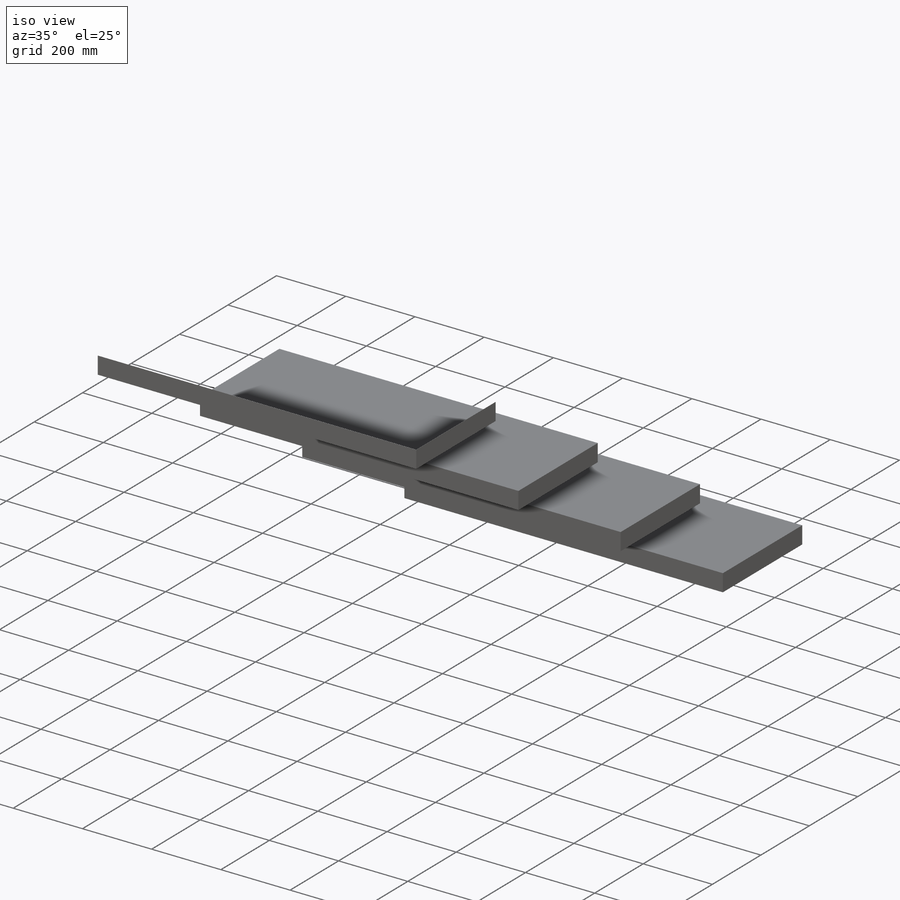
[diagram: iso view]
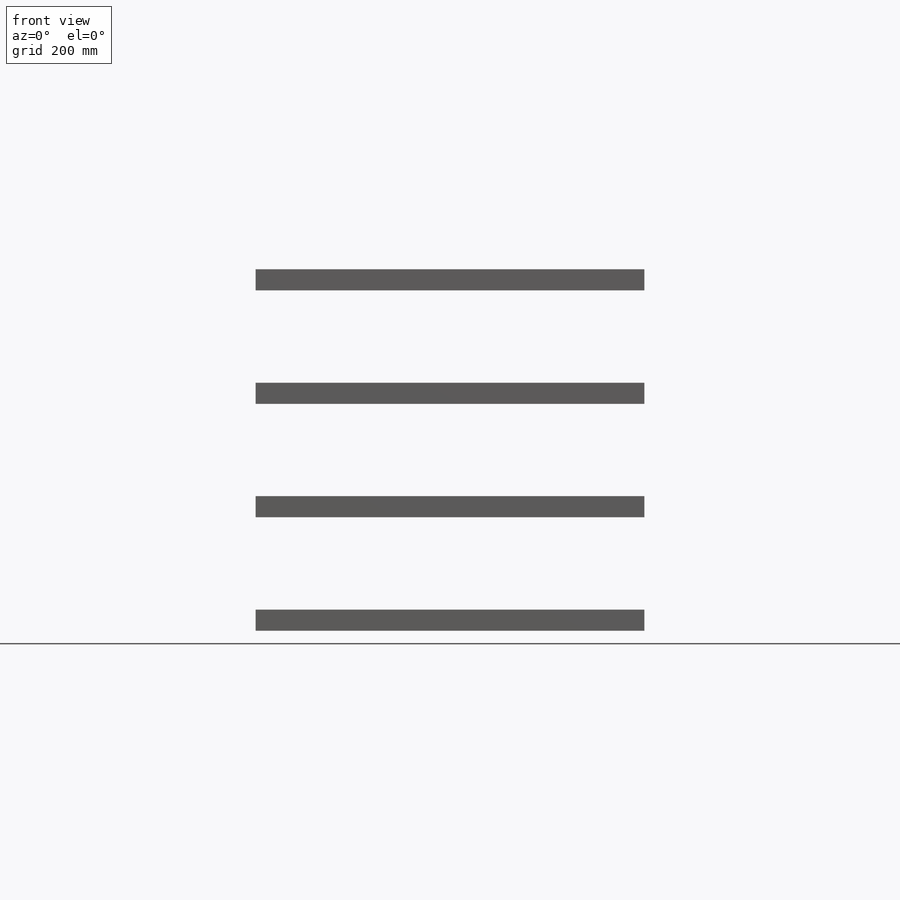
[diagram: front view]
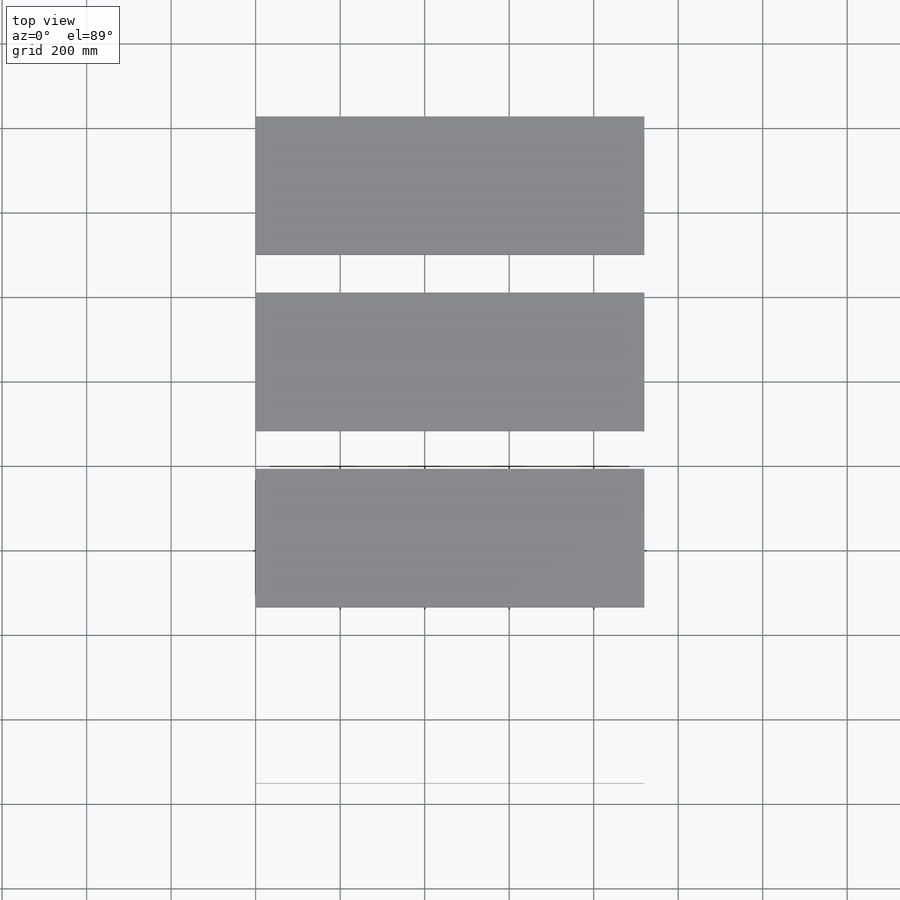
[diagram: top view]
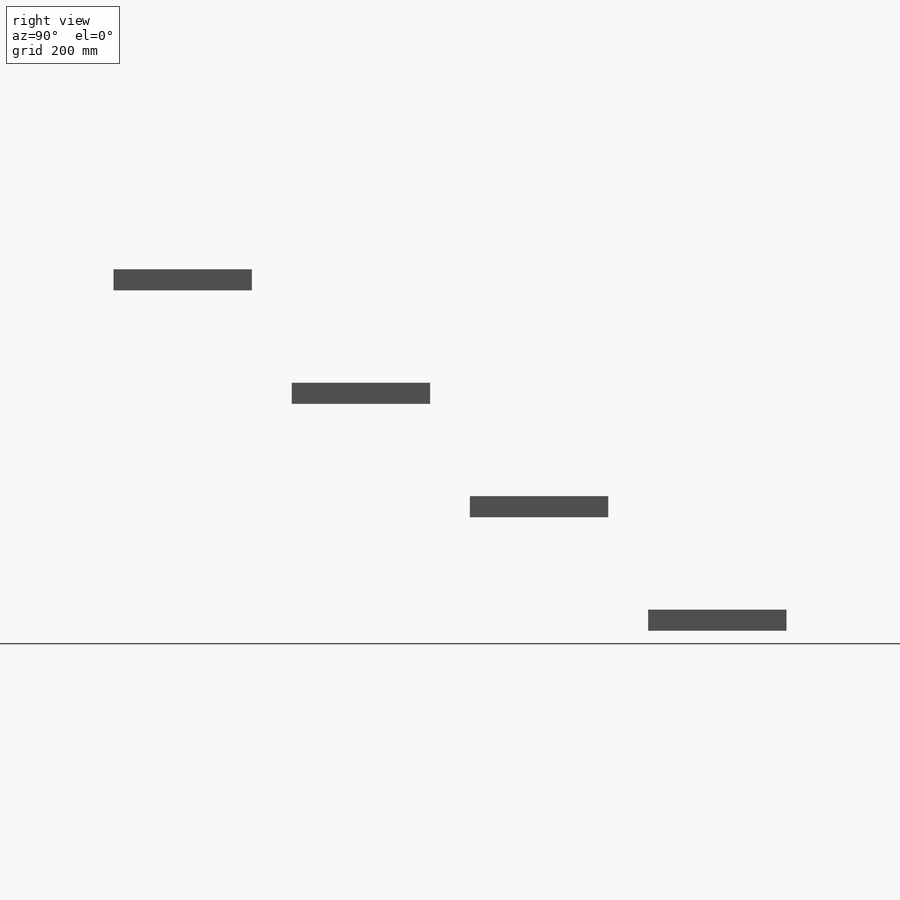
[diagram: right view]
SOLIDWORKS PART (.sldprt)
format: sldprt  version: not decoded by parser v0  size: 592,896 bytes
history: native  units: mm
features: sketch x7, plane x5, material x1, helix x1, surface_op x1, extrude x1 (+12 scaffold rows collapsed)
feature tree (28):
  scaffold x12  (default folders/planes/origin — collapsed)
  material  "7075-T6, Plate (SS)"
  plane  "Ebene vorne"
  plane  "Ebene oben"
  plane  "Ebene rechts"
  plane  "Ebene1"  Offset=3000mm
  sketch  "Skizze5"  dims[D1=900.0mm]
  plane  "Ebene3"
  sketch  "Skizze6"  dims[D1=2500.0mm]
  helix  "Spirale/Helix2"  Pitch=1250mm
  sketch  "3D-Skizze1"  dims[D1=0.0mm]
  sketch  "Skizze1"  dims[c1.D1=2000.0mm c1.D2=~2774.289563mm c2.D2=45.0deg]
  sketch  "Skizze2"  dims[c1.D1=2000.0mm c1.D2=~2774.289563mm c2.D2=45.0deg]
  sketch  "3D-Skizze2"  dims[D1=0.0mm]
  surface_op  "Oberfläche-Linear austragen1"
  sketch  "Skizze7"
  extrude  "Linear austragen1"  Depth=50mm
decode coverage: 8 of 10 modeling features carry decoded parameters
note: ~ marks probable driven/reference dimensions
note: suppression state not decoded; provenance and decode notes live in map.json
